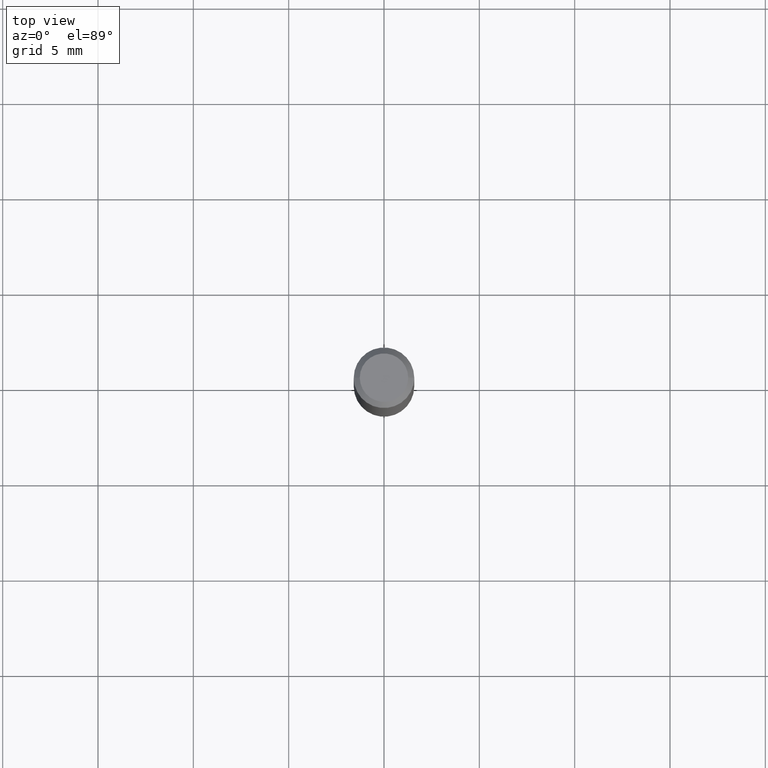
[diagram: clean part render]
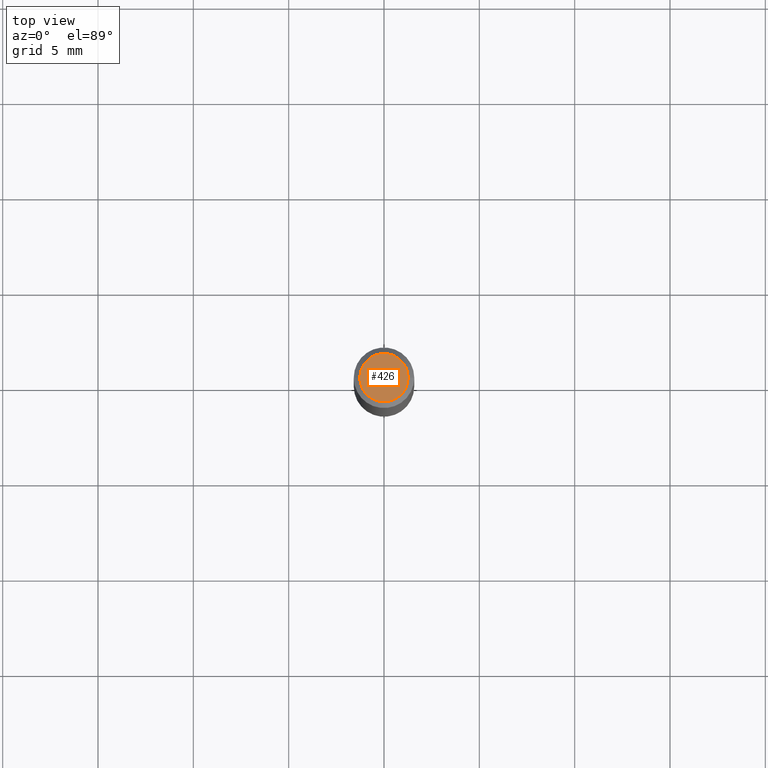
[diagram: same view with one face highlighted and labeled with its STEP entity id]
A machine part, top view. The second image highlights one B-rep face of the part: STEP entity #426.
In plain terms, the highlighted planar face has unit normal (0, -0, -1).
Its self-contained STEP definition (entity closure, byte-faithful):
#13 = AXIS2_PLACEMENT_3D ( 'NONE', #340, #306, #269 ) ;
#16 = ORIENTED_EDGE ( 'NONE', *, *, #453, .T. ) ;
#25 = DIRECTION ( 'NONE',  ( -1.000000000000000000, 6.982962677686265922E-15, -4.876176775795935793E-29 ) ) ;
#27 = CARTESIAN_POINT ( 'NONE',  ( 3.893286209682126177E-47, -5.558580879666067980E-33, -1.592040838891559689E-18 ) ) ;
#35 = AXIS2_PLACEMENT_3D ( 'NONE', #27, #145, #443 ) ;
#63 = CARTESIAN_POINT ( 'NONE',  ( 1.946643104841063088E-47, -2.779290439833033990E-33, -7.960204194457798443E-19 ) ) ;
#141 = FACE_OUTER_BOUND ( 'NONE', #287, .T. ) ;
#145 = DIRECTION ( 'NONE',  ( -2.445468806185136597E-29, 3.491481338843145583E-15, 1.000000000000000000 ) ) ;
#151 = VERTEX_POINT ( 'NONE', #380 ) ;
#209 = ORIENTED_EDGE ( 'NONE', *, *, #394, .T. ) ;
#215 = DIRECTION ( 'NONE',  ( 2.438088387897960049E-29, -3.491481338843145188E-15, -1.000000000000000000 ) ) ;
#227 = CIRCLE ( 'NONE', #13, 0.04999999999999999584 ) ;
#249 = CARTESIAN_POINT ( 'NONE',  ( -0.04999999999999999584, 3.709698922520826725E-16, -1.592040838894077649E-18 ) ) ;
#269 = DIRECTION ( 'NONE',  ( 1.000000000000000000, -6.982962677686265922E-15, 4.875957971899673662E-29 ) ) ;
#287 = EDGE_LOOP ( 'NONE', ( #209, #16 ) ) ;
#306 = DIRECTION ( 'NONE',  ( -2.445468806185136597E-29, 3.491481338843145583E-15, 1.000000000000000000 ) ) ;
#336 = VERTEX_POINT ( 'NONE', #249 ) ;
#340 = CARTESIAN_POINT ( 'NONE',  ( 3.893286209682126177E-47, -5.558580879666067980E-33, -1.592040838891559689E-18 ) ) ;
#357 = CIRCLE ( 'NONE', #35, 0.04999999999999999584 ) ;
#380 = CARTESIAN_POINT ( 'NONE',  ( 0.04999999999999999584, -4.077247707424184705E-16, -1.592040838888913461E-18 ) ) ;
#394 = EDGE_CURVE ( 'NONE', #336, #151, #357, .T. ) ;
#426 = ADVANCED_FACE ( 'NONE', ( #141 ), #479, .F. ) ;
#441 = AXIS2_PLACEMENT_3D ( 'NONE', #63, #215, #25 ) ;
#443 = DIRECTION ( 'NONE',  ( 1.000000000000000000, -6.982962677686265922E-15, 4.875957971899673662E-29 ) ) ;
#453 = EDGE_CURVE ( 'NONE', #151, #336, #227, .T. ) ;
#479 = PLANE ( 'NONE',  #441 ) ;